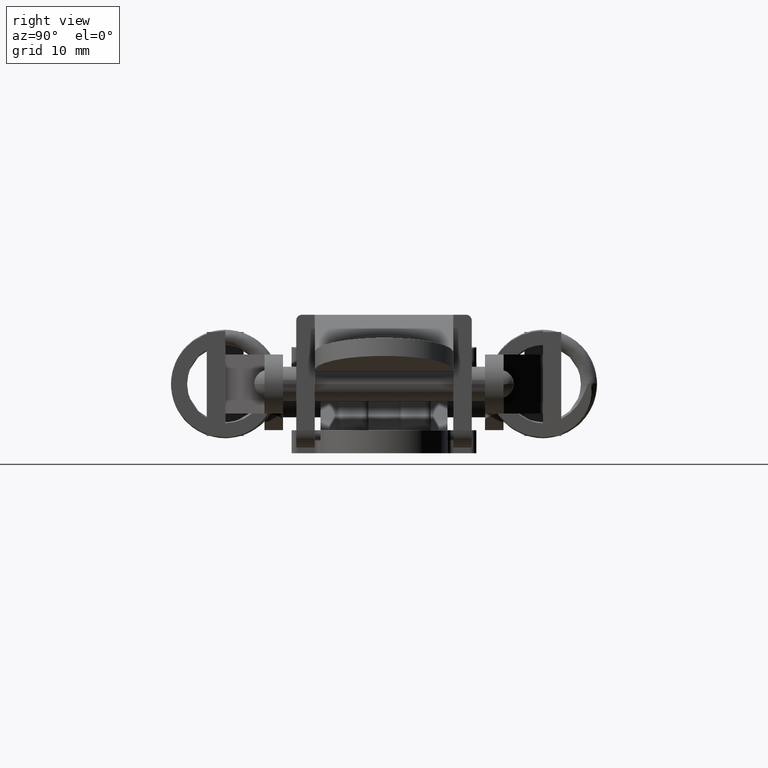
[diagram: clean part render]
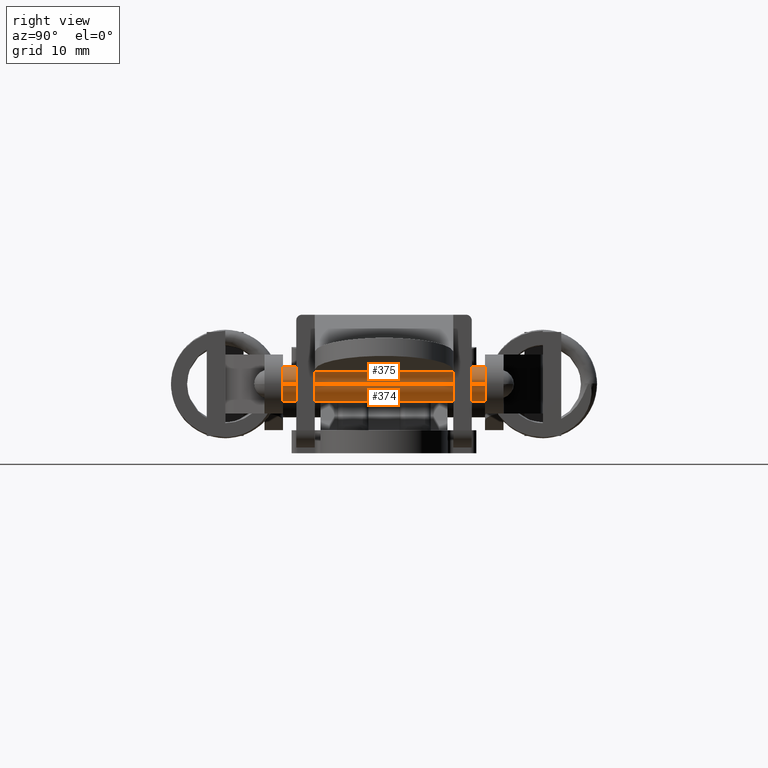
[diagram: same view with one multi-face feature highlighted, each face labeled with its STEP entity id]
A machine part, right view. The highlighted faces form ONE feature: a constant-radius fillet chain: 2 tangent blend faces with common blend radius 1.5 mm. The faces share edges in the B-rep.
Their STEP definitions:
[1] entity #374 (Cylinder):
#374=ADVANCED_FACE('',(#1986),#1985,.T.);
#1985=CYLINDRICAL_SURFACE('',#7776,1.50000000001E+00);
#1986=FACE_OUTER_BOUND('',#7777,.T.);
#7773=CARTESIAN_POINT('',(0.00000000000E+00,0.00000000000E+00,0.00000000000E+00));
#7774=DIRECTION('',(1.00000000000E+00,-0.00000000000E+00,0.00000000000E+00));
#7775=DIRECTION('',(0.00000000000E+00,2.64687485605E-28,-1.00000000000E+00));
#7776=AXIS2_PLACEMENT_3D('',#7773,#7774,#7775);
#7777=EDGE_LOOP('',(#9918,#9919,#9920,#9921));
#9918=ORIENTED_EDGE('',*,*,#11088,.T.);
#9919=ORIENTED_EDGE('',*,*,#11187,.F.);
#9920=ORIENTED_EDGE('',*,*,#11185,.F.);
#9921=ORIENTED_EDGE('',*,*,#11188,.T.);
#11088=EDGE_CURVE('',#13276,#13275,#13283,.T.);
#11185=EDGE_CURVE('',#13929,#13930,#13931,.T.);
#11187=EDGE_CURVE('',#13930,#13275,#13943,.T.);
#11188=EDGE_CURVE('',#13929,#13276,#13949,.T.);
#13275=VERTEX_POINT('',#18632);
#13276=VERTEX_POINT('',#18633);
#13283=CIRCLE('',#18641,1.50000000001E+00);
#13929=VERTEX_POINT('',#19017);
#13930=VERTEX_POINT('',#19018);
#13931=CIRCLE('',#19022,1.50000000001E+00);
#13943=(BOUNDED_CURVE() B_SPLINE_CURVE(1,(#19027,#19028),.UNSPECIFIED.,.F.,.F.) B_SPLINE_CURVE_WITH_KNOTS((2,2),(8.33333328360E-02,9.16666665505E-01),.UNSPECIFIED.) CURVE() GEOMETRIC_REPRESENTATION_ITEM() RATIONAL_B_SPLINE_CURVE((1.00000000000E+00,1.00000000000E+00)) REPRESENTATION_ITEM('') );
#13949=(BOUNDED_CURVE() B_SPLINE_CURVE(1,(#19029,#19030),.UNSPECIFIED.,.F.,.F.) B_SPLINE_CURVE_WITH_KNOTS((2,2),(8.33333333333E-02,9.16666666667E-01),.UNSPECIFIED.) CURVE() GEOMETRIC_REPRESENTATION_ITEM() RATIONAL_B_SPLINE_CURVE((7.50000000000E-01,7.50000000000E-01)) REPRESENTATION_ITEM('') );
#18632=CARTESIAN_POINT('',(8.74999999999E+00,-2.22044604925E-16,-1.50000000001E+00));
#18633=CARTESIAN_POINT('',(8.74999999999E+00,-3.56612164576E-17,1.50000000001E+00));
#18638=CARTESIAN_POINT('',(8.74999999999E+00,0.00000000000E+00,0.00000000000E+00));
#18639=DIRECTION('',(-1.00000000000E+00,-0.00000000000E+00,0.00000000000E+00));
#18640=DIRECTION('',(-0.00000000000E+00,9.86864910773E-17,1.00000000000E+00));
#18641=AXIS2_PLACEMENT_3D('',#18638,#18639,#18640);
#19017=CARTESIAN_POINT('',(-8.74999999999E+00,-3.67381906150E-16,1.50000000001E+00));
#19018=CARTESIAN_POINT('',(-8.74999999999E+00,0.00000000000E+00,-1.50000000001E+00));
#19019=CARTESIAN_POINT('',(-8.74999999999E+00,0.00000000000E+00,0.00000000000E+00));
#19020=DIRECTION('',(-1.00000000000E+00,0.00000000000E+00,0.00000000000E+00));
#19021=DIRECTION('',(-0.00000000000E+00,-1.22460635383E-16,1.00000000000E+00));
#19022=AXIS2_PLACEMENT_3D('',#19019,#19020,#19021);
#19027=CARTESIAN_POINT('',(-8.75000001043E+00,3.97031228410E-28,-1.50000000001E+00));
#19028=CARTESIAN_POINT('',(8.74999997559E+00,3.97031228410E-28,-1.50000000001E+00));
#19029=CARTESIAN_POINT('',(-8.74999999999E+00,0.00000000000E+00,1.50000000001E+00));
#19030=CARTESIAN_POINT('',(8.74999999999E+00,0.00000000000E+00,1.50000000001E+00));
[2] entity #375 (Cylinder):
#375=ADVANCED_FACE('',(#1996),#1995,.T.);
#1995=CYLINDRICAL_SURFACE('',#7781,1.50000000001E+00);
#1996=FACE_OUTER_BOUND('',#7782,.T.);
#7778=CARTESIAN_POINT('',(0.00000000000E+00,0.00000000000E+00,0.00000000000E+00));
#7779=DIRECTION('',(1.00000000000E+00,-0.00000000000E+00,0.00000000000E+00));
#7780=DIRECTION('',(0.00000000000E+00,2.64687485605E-28,-1.00000000000E+00));
#7781=AXIS2_PLACEMENT_3D('',#7778,#7779,#7780);
#7782=EDGE_LOOP('',(#9922,#9923,#9924,#9925));
#9922=ORIENTED_EDGE('',*,*,#11186,.F.);
#9923=ORIENTED_EDGE('',*,*,#11187,.T.);
#9924=ORIENTED_EDGE('',*,*,#11087,.T.);
#9925=ORIENTED_EDGE('',*,*,#11188,.F.);
#11087=EDGE_CURVE('',#13275,#13276,#13277,.T.);
#11186=EDGE_CURVE('',#13930,#13929,#13937,.T.);
#11187=EDGE_CURVE('',#13930,#13275,#13943,.T.);
#11188=EDGE_CURVE('',#13929,#13276,#13949,.T.);
#13275=VERTEX_POINT('',#18632);
#13276=VERTEX_POINT('',#18633);
#13277=CIRCLE('',#18637,1.50000000001E+00);
#13929=VERTEX_POINT('',#19017);
#13930=VERTEX_POINT('',#19018);
#13937=CIRCLE('',#19026,1.50000000001E+00);
#13943=(BOUNDED_CURVE() B_SPLINE_CURVE(1,(#19027,#19028),.UNSPECIFIED.,.F.,.F.) B_SPLINE_CURVE_WITH_KNOTS((2,2),(8.33333328360E-02,9.16666665505E-01),.UNSPECIFIED.) CURVE() GEOMETRIC_REPRESENTATION_ITEM() RATIONAL_B_SPLINE_CURVE((1.00000000000E+00,1.00000000000E+00)) REPRESENTATION_ITEM('') );
#13949=(BOUNDED_CURVE() B_SPLINE_CURVE(1,(#19029,#19030),.UNSPECIFIED.,.F.,.F.) B_SPLINE_CURVE_WITH_KNOTS((2,2),(8.33333333333E-02,9.16666666667E-01),.UNSPECIFIED.) CURVE() GEOMETRIC_REPRESENTATION_ITEM() RATIONAL_B_SPLINE_CURVE((7.50000000000E-01,7.50000000000E-01)) REPRESENTATION_ITEM('') );
#18632=CARTESIAN_POINT('',(8.74999999999E+00,-2.22044604925E-16,-1.50000000001E+00));
#18633=CARTESIAN_POINT('',(8.74999999999E+00,-3.56612164576E-17,1.50000000001E+00));
#18634=CARTESIAN_POINT('',(8.74999999999E+00,0.00000000000E+00,0.00000000000E+00));
#18635=DIRECTION('',(-1.00000000000E+00,-0.00000000000E+00,0.00000000000E+00));
#18636=DIRECTION('',(-0.00000000000E+00,9.86864910773E-17,1.00000000000E+00));
#18637=AXIS2_PLACEMENT_3D('',#18634,#18635,#18636);
#19017=CARTESIAN_POINT('',(-8.74999999999E+00,-3.67381906150E-16,1.50000000001E+00));
#19018=CARTESIAN_POINT('',(-8.74999999999E+00,0.00000000000E+00,-1.50000000001E+00));
#19023=CARTESIAN_POINT('',(-8.74999999999E+00,0.00000000000E+00,0.00000000000E+00));
#19024=DIRECTION('',(-1.00000000000E+00,0.00000000000E+00,0.00000000000E+00));
#19025=DIRECTION('',(-0.00000000000E+00,-1.22460635383E-16,1.00000000000E+00));
#19026=AXIS2_PLACEMENT_3D('',#19023,#19024,#19025);
#19027=CARTESIAN_POINT('',(-8.75000001043E+00,3.97031228410E-28,-1.50000000001E+00));
#19028=CARTESIAN_POINT('',(8.74999997559E+00,3.97031228410E-28,-1.50000000001E+00));
#19029=CARTESIAN_POINT('',(-8.74999999999E+00,0.00000000000E+00,1.50000000001E+00));
#19030=CARTESIAN_POINT('',(8.74999999999E+00,0.00000000000E+00,1.50000000001E+00));